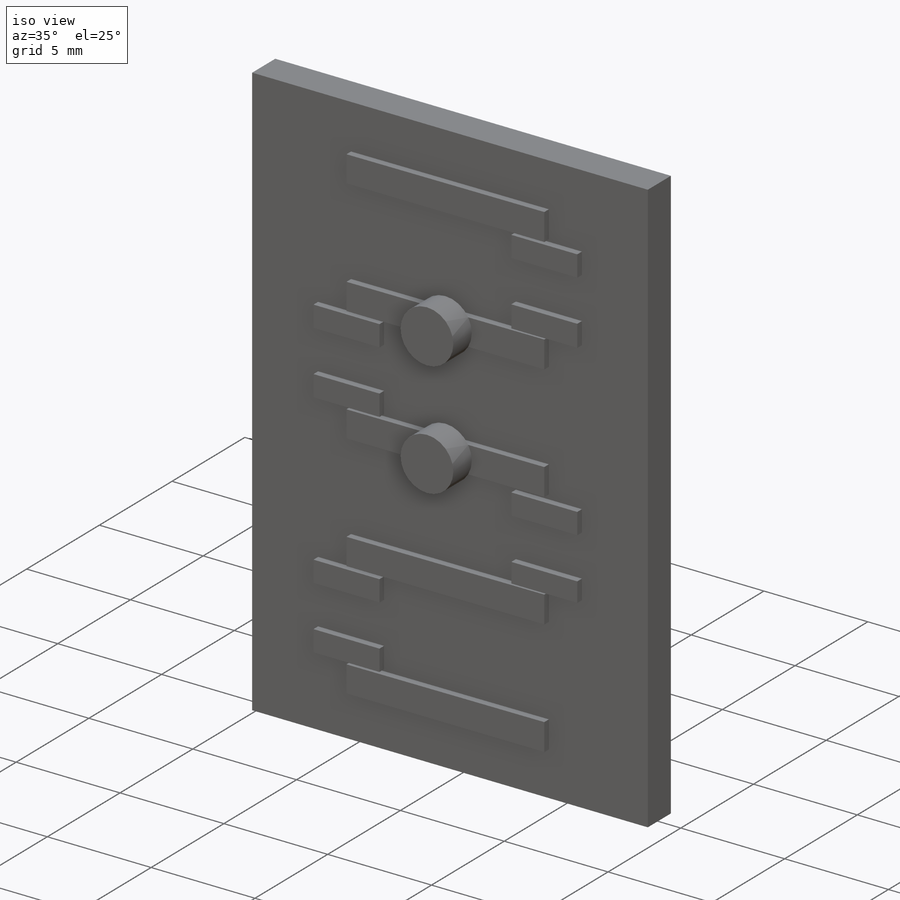
[diagram: iso view]
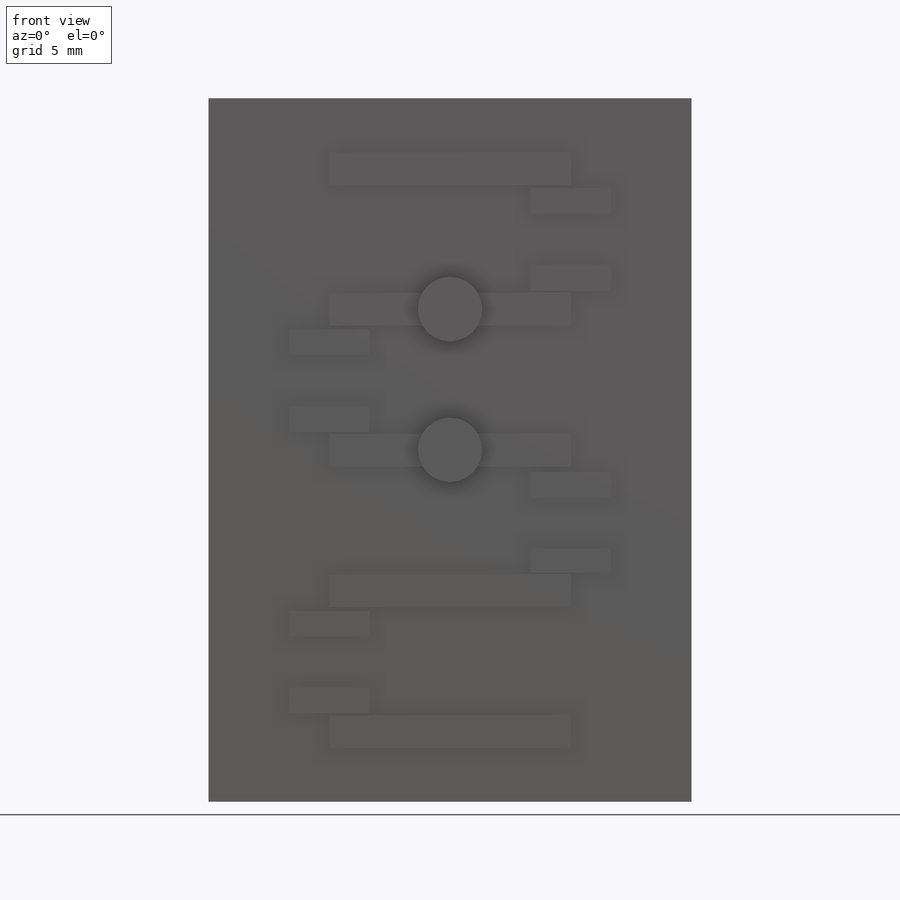
[diagram: front view]
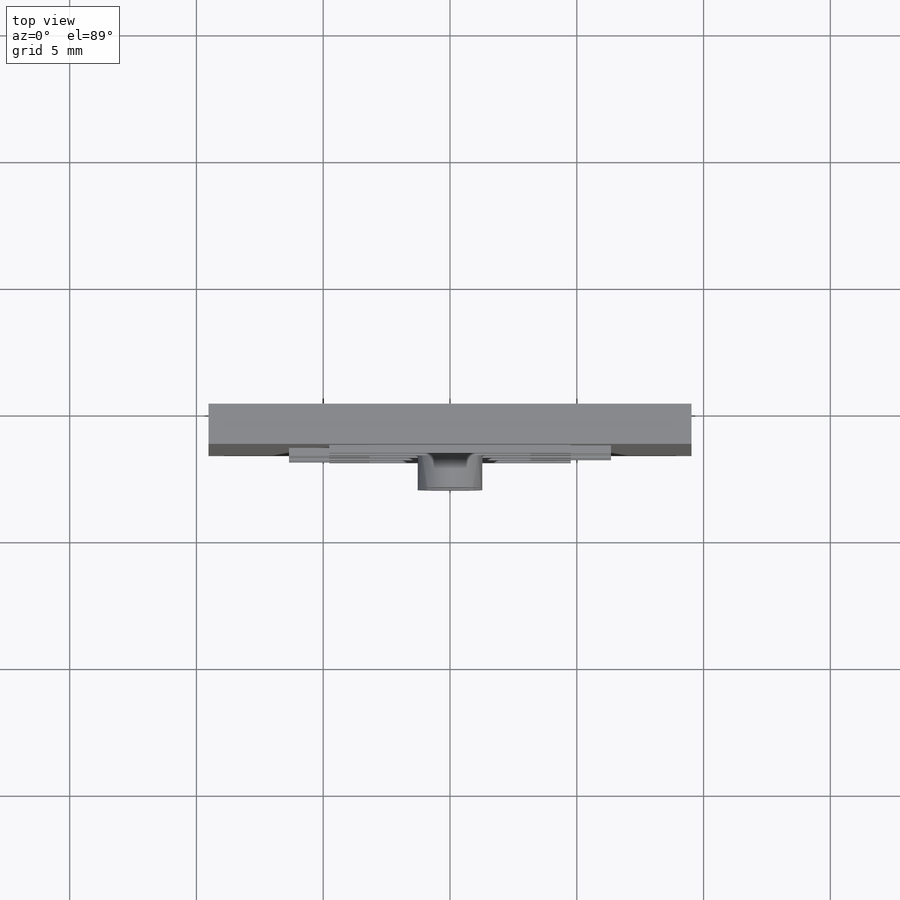
[diagram: top view]
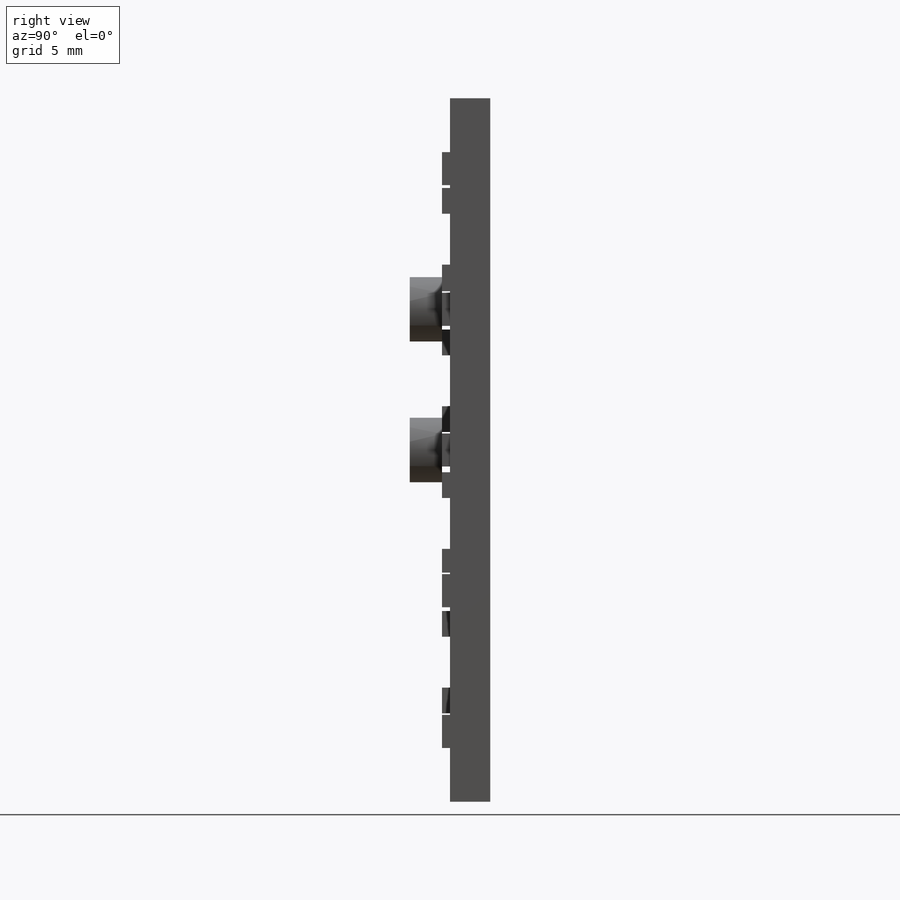
[diagram: right view]
SOLIDWORKS PART (.sldprt)
format: sldprt  version: not decoded by parser v0  size: 400,384 bytes
history: native  units: mm
features: sketch x6, extrude x4, material x1, hole x1, pattern_linear x1 (+13 scaffold rows collapsed)
feature tree (26):
  scaffold x13  (default folders/planes/origin — collapsed)
  material  "Material <not specified>"
  sketch  "Sketch1"  dims[D1=27.7495mm D2=~13.87475mm D3=19.05mm D4=9.525mm]
  extrude  "Boss-Extrude1"  Depth=1.5875mm
  hole  "#0-80 Tapped Hole1"  Diameter=1.19126mm Depth=1.5875mm
  sketch  "Sketch3"  dims[D1=5.5499mm D2=5.5499mm D3=5.5499mm D4=5.5499mm D5=~2.77495mm]
  sketch  "Sketch2"  dims[hole-wizard template sketch: 60 standard entries collapsed; hole parameters kept: c18.Thru Tap Drill Depth=1.5875mm]
  sketch  "Sketch4"  dims[D1=1.016mm D2=3.175mm D3=1.016mm D4=3.175mm D5=2.0066mm D6=0.7112mm D7=3.175mm D8=3.175mm D9=3.175mm D10=1.016mm D11=3.175mm D12=2.0066mm D13=0.7112mm D14=3.175mm D15=3.175mm D16=1.016mm D17=3.175mm D18=2.0066mm D19=3.175mm D20=1.016mm D21=3.175mm D22=2.0066mm D23=3.175mm D24=3.175mm D25=0.7112mm D26=0.7112mm]
  extrude  "Boss-Extrude2"  Depth=0.3175mm
  sketch  "Sketch6"  dims[D1=9.525mm D2=4.7625mm D3=1.27mm D4=0.635mm]
  extrude  "Boss-Extrude3"  Depth=0.3175mm
  pattern_linear  "LPattern1"  Count1=5 Count2=1 Spacing1=5.5499mm Spacing2=2.54mm
  sketch  "Sketch8"  dims[D1=2.54mm D2=2.54mm]
  extrude  "Boss-Extrude4"  Depth=1.27mm
decode coverage: 12 of 12 modeling features carry decoded parameters
note: ~ marks probable driven/reference dimensions
note: suppression state not decoded; provenance and decode notes live in map.json
